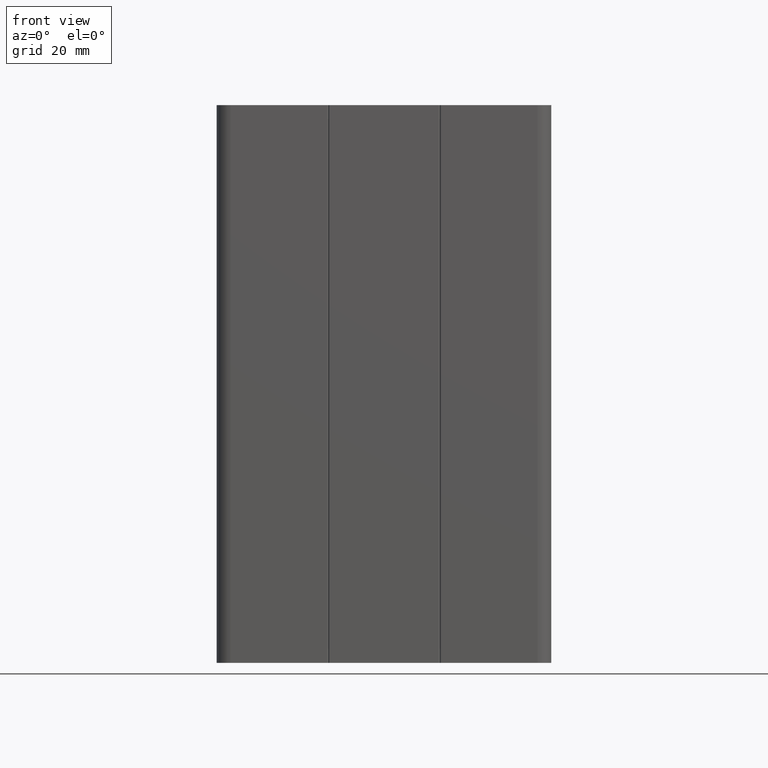
[diagram: clean part render]
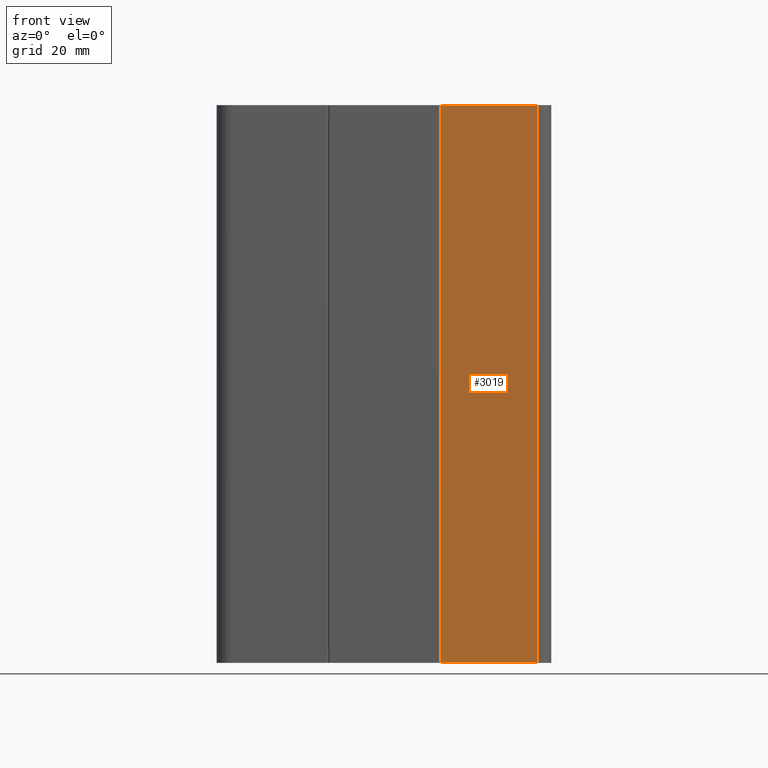
[diagram: same view with one face highlighted and labeled with its STEP entity id]
A machine part, front view. The second image highlights one B-rep face of the part: STEP entity #3019.
In plain terms, the highlighted planar face has unit normal (0, -1, 0).
Its self-contained STEP definition (entity closure, byte-faithful):
#267=FACE_OUTER_BOUND('',#421,.T.);
#421=EDGE_LOOP('',(#2211,#2212,#2213,#2214));
#655=LINE('',#4668,#991);
#656=LINE('',#4671,#992);
#657=LINE('',#4673,#993);
#658=LINE('',#4674,#994);
#991=VECTOR('',#3773,100.);
#992=VECTOR('',#3776,17.3);
#993=VECTOR('',#3777,17.3);
#994=VECTOR('',#3778,100.);
#1319=VERTEX_POINT('',#4664);
#1320=VERTEX_POINT('',#4666);
#1321=VERTEX_POINT('',#4670);
#1322=VERTEX_POINT('',#4672);
#1689=EDGE_CURVE('',#1319,#1320,#655,.T.);
#1690=EDGE_CURVE('',#1319,#1321,#656,.T.);
#1691=EDGE_CURVE('',#1322,#1320,#657,.T.);
#1692=EDGE_CURVE('',#1321,#1322,#658,.T.);
#2211=ORIENTED_EDGE('',*,*,#1690,.F.);
#2212=ORIENTED_EDGE('',*,*,#1689,.T.);
#2213=ORIENTED_EDGE('',*,*,#1691,.F.);
#2214=ORIENTED_EDGE('',*,*,#1692,.F.);
#2896=PLANE('',#3233);
#3019=ADVANCED_FACE('',(#267),#2896,.T.);
#3233=AXIS2_PLACEMENT_3D('',#4669,#3774,#3775);
#3773=DIRECTION('',(0.,0.,1.));
#3774=DIRECTION('center_axis',(0.,-1.,0.));
#3775=DIRECTION('ref_axis',(1.,0.,0.));
#3776=DIRECTION('',(-1.,0.,0.));
#3777=DIRECTION('',(1.,0.,0.));
#3778=DIRECTION('',(0.,0.,1.));
#4664=CARTESIAN_POINT('',(27.5,-30.,0.));
#4666=CARTESIAN_POINT('',(27.5,-30.,100.));
#4668=CARTESIAN_POINT('',(27.5,-30.,0.));
#4669=CARTESIAN_POINT('Origin',(10.2,-30.,0.));
#4670=CARTESIAN_POINT('',(10.2,-30.,0.));
#4671=CARTESIAN_POINT('',(27.5,-30.,0.));
#4672=CARTESIAN_POINT('',(10.2,-30.,100.));
#4673=CARTESIAN_POINT('',(27.5,-30.,100.));
#4674=CARTESIAN_POINT('',(10.2,-30.,0.));